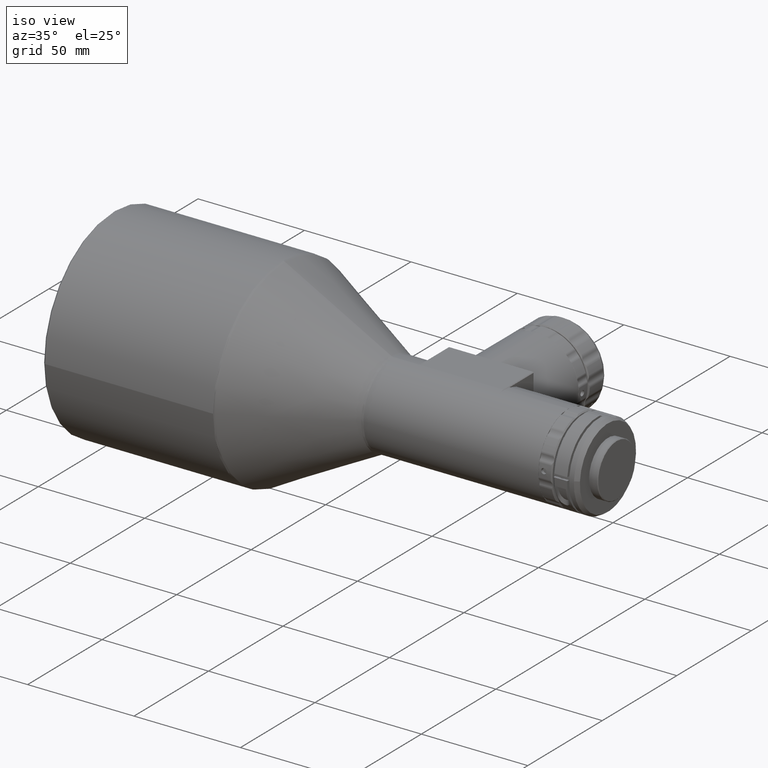
[diagram: clean part render]
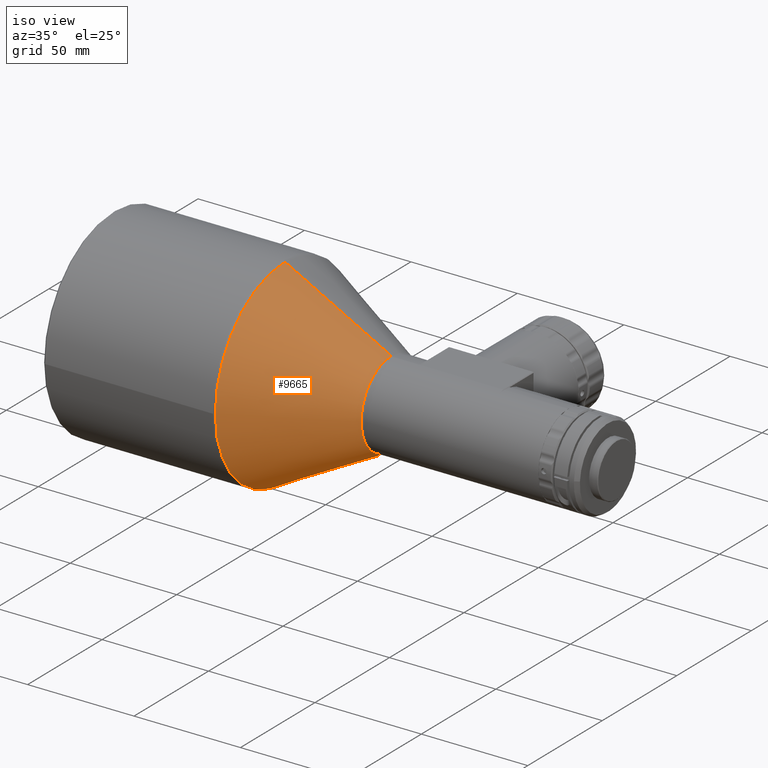
[diagram: same view with one face highlighted and labeled with its STEP entity id]
A machine part, iso view. The second image highlights one B-rep face of the part: STEP entity #9665.
In plain terms, the highlighted conical surface has half-angle 28 deg.
Its self-contained STEP definition (entity closure, byte-faithful):
#123 = CARTESIAN_POINT ( 'NONE',  ( 80.93894312589688400, -1.438776816035583900E-008, -46.76589518593537800 ) ) ;
#452 = CARTESIAN_POINT ( 'NONE',  ( 80.93894312595021700, -2.099639707734379800E-009, 46.76589518590702700 ) ) ;
#1140 = DIRECTION ( 'NONE',  ( -1.000000000000000000, 0.0000000000000000000, 0.0000000000000000000 ) ) ;
#1223 = DIRECTION ( 'NONE',  ( -0.8829475928525255500, 0.0000000000000000000, 0.4694715627979300100 ) ) ;
#1799 = LINE ( 'NONE', #3274, #10293 ) ;
#1834 = DIRECTION ( 'NONE',  ( -1.000000000000000000, 6.858612197191043300E-016, 0.0000000000000000000 ) ) ;
#2029 = VERTEX_POINT ( 'NONE', #11073 ) ;
#2329 = VERTEX_POINT ( 'NONE', #452 ) ;
#2865 = EDGE_LOOP ( 'NONE', ( #5389, #6994, #12172, #12094 ) ) ;
#2995 = DIRECTION ( 'NONE',  ( -1.371722439436490100E-015, -1.000000000000000000, 0.0000000000000000000 ) ) ;
#3274 = CARTESIAN_POINT ( 'NONE',  ( 130.8379834500000200, 0.0000000000000000000, 20.23410481400000200 ) ) ;
#3372 = DIRECTION ( 'NONE',  ( 1.780501079167062500E-015, 0.0000000000000000000, 1.000000000000000000 ) ) ;
#3501 = CIRCLE ( 'NONE', #14289, 20.23410481425894900 ) ;
#3585 = CARTESIAN_POINT ( 'NONE',  ( 130.8379834500666200, 0.0000000000000000000, 20.23410481419811200 ) ) ;
#3606 = EDGE_CURVE ( 'NONE', #2029, #7998, #5783, .T. ) ;
#4054 = CARTESIAN_POINT ( 'NONE',  ( 130.8379834500985900, 0.0000000000000000000, 0.0000000000000000000 ) ) ;
#5389 = ORIENTED_EDGE ( 'NONE', *, *, #3606, .F. ) ;
#5535 = AXIS2_PLACEMENT_3D ( 'NONE', #7688, #1140, #3372 ) ;
#5606 = VECTOR ( 'NONE', #7304, 1000.000000000000000 ) ;
#5783 = LINE ( 'NONE', #7223, #5606 ) ;
#6994 = ORIENTED_EDGE ( 'NONE', *, *, #13845, .T. ) ;
#7223 = CARTESIAN_POINT ( 'NONE',  ( 130.8379834500000200, 2.477963169407715300E-015, -20.23410481400000200 ) ) ;
#7242 = VERTEX_POINT ( 'NONE', #3585 ) ;
#7304 = DIRECTION ( 'NONE',  ( -0.8829475928525255500, 5.749368466711906400E-017, -0.4694715627979300100 ) ) ;
#7688 = CARTESIAN_POINT ( 'NONE',  ( 80.93894312599991300, 0.0000000000000000000, 0.0000000000000000000 ) ) ;
#7998 = VERTEX_POINT ( 'NONE', #123 ) ;
#8346 = DIRECTION ( 'NONE',  ( -1.000000000000000000, 0.0000000000000000000, 0.0000000000000000000 ) ) ;
#8699 = CIRCLE ( 'NONE', #5535, 46.76589518600000900 ) ;
#8732 = FACE_OUTER_BOUND ( 'NONE', #2865, .T. ) ;
#8902 = CONICAL_SURFACE ( 'NONE', #14243, 20.23410481400000200, 0.4886921905720475500 ) ;
#9665 = ADVANCED_FACE ( 'NONE', ( #8732 ), #8902, .T. ) ;
#10293 = VECTOR ( 'NONE', #1223, 1000.000000000000000 ) ;
#11073 = CARTESIAN_POINT ( 'NONE',  ( 130.8379834500741500, -2.075042135144987000E-009, -20.23410481419411200 ) ) ;
#11746 = DIRECTION ( 'NONE',  ( 0.0000000000000000000, 0.0000000000000000000, 1.000000000000000000 ) ) ;
#12094 = ORIENTED_EDGE ( 'NONE', *, *, #13882, .F. ) ;
#12172 = ORIENTED_EDGE ( 'NONE', *, *, #12215, .T. ) ;
#12215 = EDGE_CURVE ( 'NONE', #7242, #2329, #1799, .T. ) ;
#13845 = EDGE_CURVE ( 'NONE', #2029, #7242, #3501, .T. ) ;
#13882 = EDGE_CURVE ( 'NONE', #7998, #2329, #8699, .T. ) ;
#13978 = CARTESIAN_POINT ( 'NONE',  ( 130.8379834500000200, 0.0000000000000000000, 0.0000000000000000000 ) ) ;
#14243 = AXIS2_PLACEMENT_3D ( 'NONE', #13978, #8346, #11746 ) ;
#14289 = AXIS2_PLACEMENT_3D ( 'NONE', #4054, #1834, #2995 ) ;